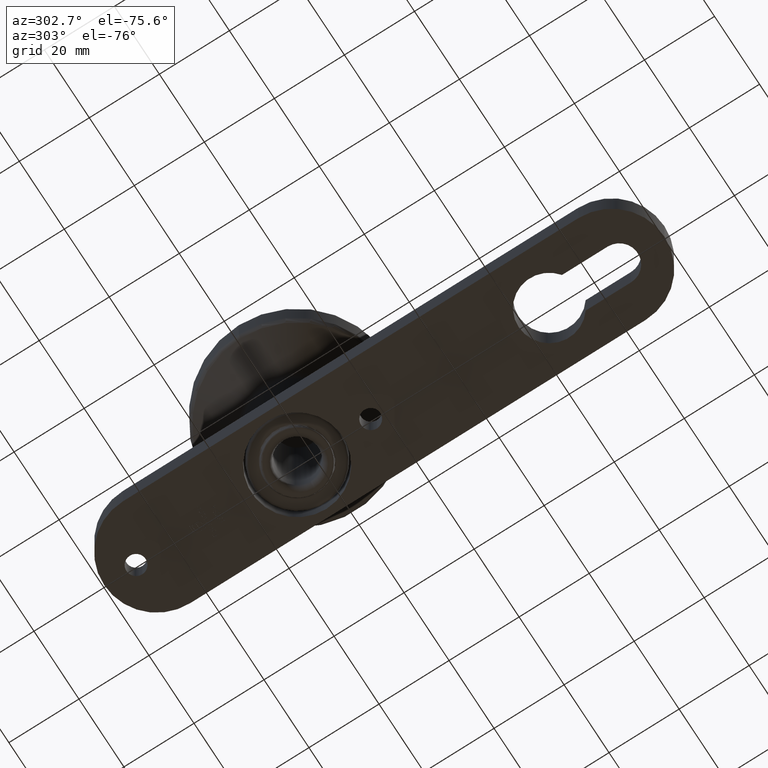
[diagram: clean part render]
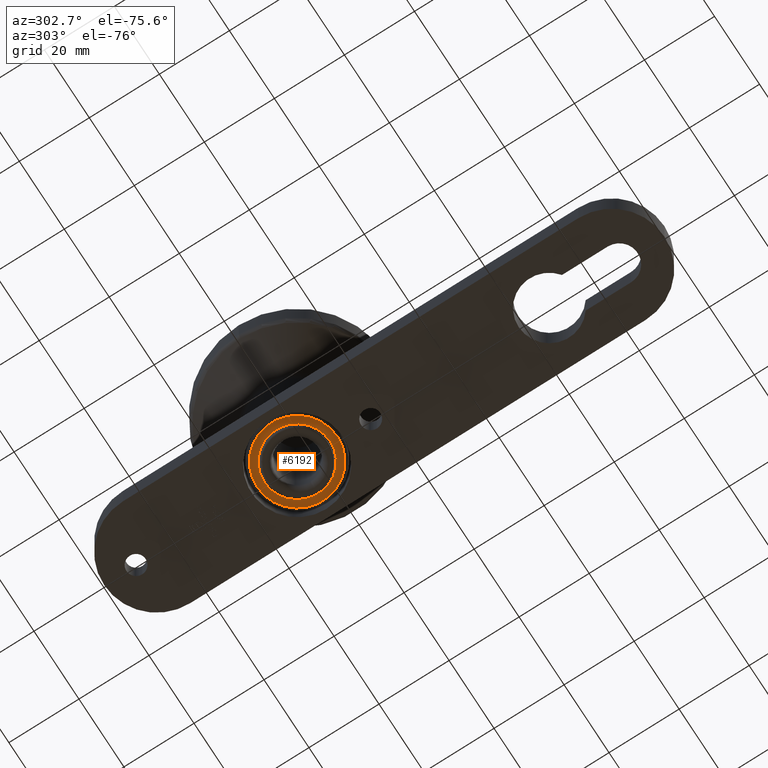
[diagram: same view with one face highlighted and labeled with its STEP entity id]
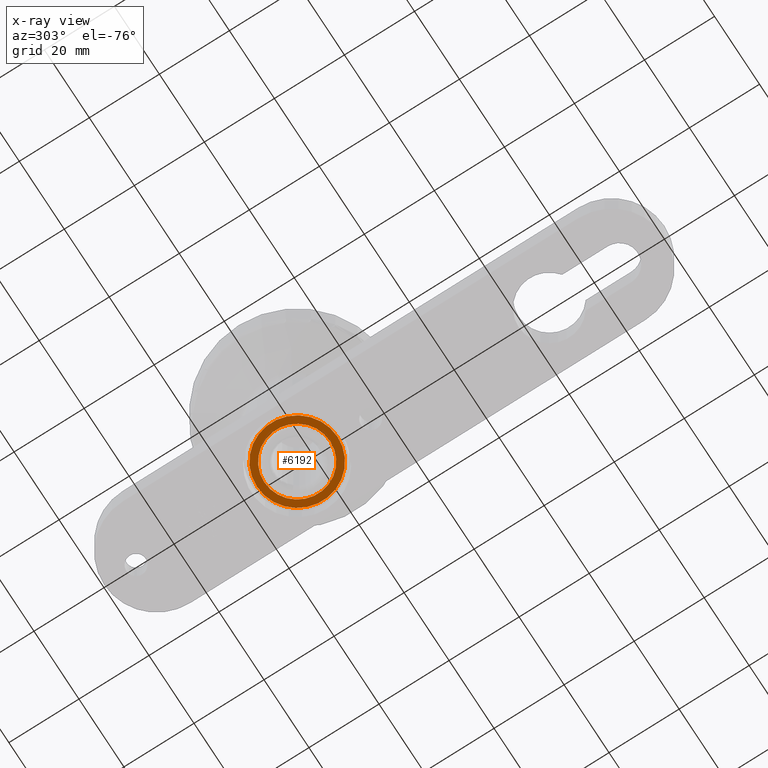
[diagram: x-ray of the same camera — body ghosted, the highlighted face saturated]
A machine part, auxiliary view. The second image highlights one B-rep face of the part: STEP entity #6192.
The next image is the same camera in x-ray: the body ghosted, the highlighted face saturated — about 0% of this face is hidden behind the body in this view.
In plain terms, the highlighted planar face has unit normal (0, 0, 1).
Its self-contained STEP definition (entity closure, byte-faithful):
#616 = VERTEX_POINT ( 'NONE', #7168 ) ;
#1230 = CARTESIAN_POINT ( 'NONE',  ( 0.000000000000000000, -11.50000000000001066, -23.49999999999999289 ) ) ;
#2508 = CIRCLE ( 'NONE', #2835, 11.50000000000000711 ) ;
#2835 = AXIS2_PLACEMENT_3D ( 'NONE', #5394, #4362, #3473 ) ;
#3473 = DIRECTION ( 'NONE',  ( 0.000000000000000000, -1.000000000000000000, 3.016910393003140886E-16 ) ) ;
#4362 = DIRECTION ( 'NONE',  ( 0.000000000000000000, -2.124151195073641295E-16, -1.000000000000000000 ) ) ;
#4575 = DIRECTION ( 'NONE',  ( -0.000000000000000000, 2.124151195073641295E-16, 1.000000000000000000 ) ) ;
#4999 = CARTESIAN_POINT ( 'NONE',  ( 0.000000000000000000, 8.900000000000002132, -23.50000000000000000 ) ) ;
#5386 = EDGE_CURVE ( 'NONE', #11466, #11466, #2508, .T. ) ;
#5394 = CARTESIAN_POINT ( 'NONE',  ( 0.000000000000000000, -3.469446951953614189E-15, -23.49999999999999645 ) ) ;
#5897 = CIRCLE ( 'NONE', #8888, 9.400000000000005684 ) ;
#5899 = PLANE ( 'NONE',  #11376 ) ;
#6192 = ADVANCED_FACE ( 'NONE', ( #11228, #8690 ), #5899, .F. ) ;
#7168 = CARTESIAN_POINT ( 'NONE',  ( 0.000000000000000000, -9.400000000000009237, -23.49999999999999289 ) ) ;
#7793 = DIRECTION ( 'NONE',  ( 0.000000000000000000, -1.000000000000000000, 2.124151195073641295E-16 ) ) ;
#7958 = DIRECTION ( 'NONE',  ( -0.000000000000000000, 2.124151195073641295E-16, 1.000000000000000000 ) ) ;
#8611 = EDGE_LOOP ( 'NONE', ( #8634 ) ) ;
#8634 = ORIENTED_EDGE ( 'NONE', *, *, #5386, .T. ) ;
#8690 = FACE_BOUND ( 'NONE', #11337, .T. ) ;
#8888 = AXIS2_PLACEMENT_3D ( 'NONE', #10388, #4575, #9299 ) ;
#8954 = ORIENTED_EDGE ( 'NONE', *, *, #11121, .T. ) ;
#9299 = DIRECTION ( 'NONE',  ( 0.000000000000000000, -1.000000000000000000, 3.690901012716608678E-16 ) ) ;
#10388 = CARTESIAN_POINT ( 'NONE',  ( 0.000000000000000000, -3.469446951953614189E-15, -23.49999999999999645 ) ) ;
#11121 = EDGE_CURVE ( 'NONE', #616, #616, #5897, .T. ) ;
#11228 = FACE_OUTER_BOUND ( 'NONE', #8611, .T. ) ;
#11337 = EDGE_LOOP ( 'NONE', ( #8954 ) ) ;
#11376 = AXIS2_PLACEMENT_3D ( 'NONE', #4999, #7958, #7793 ) ;
#11466 = VERTEX_POINT ( 'NONE', #1230 ) ;